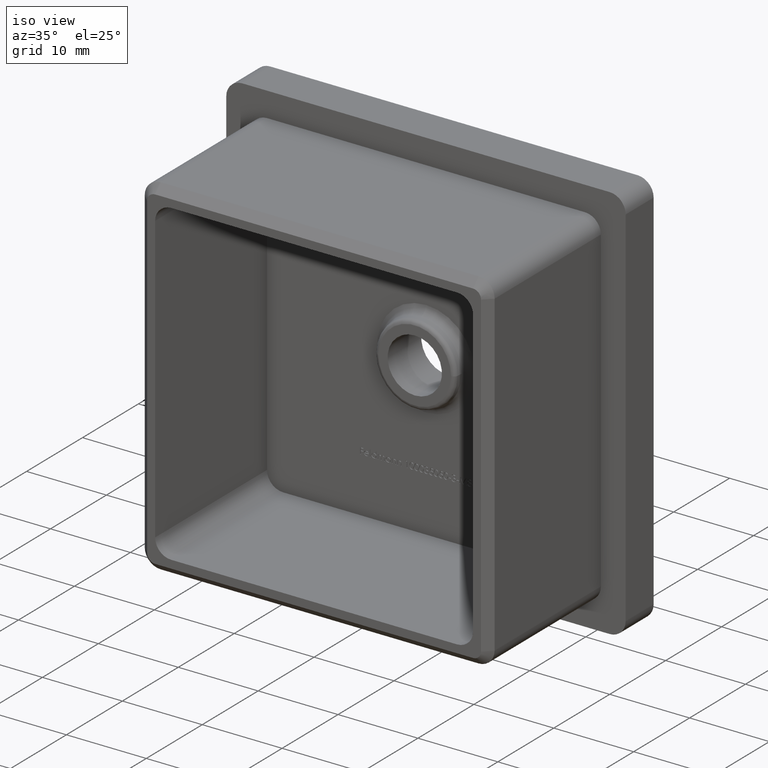
[diagram: clean part render]
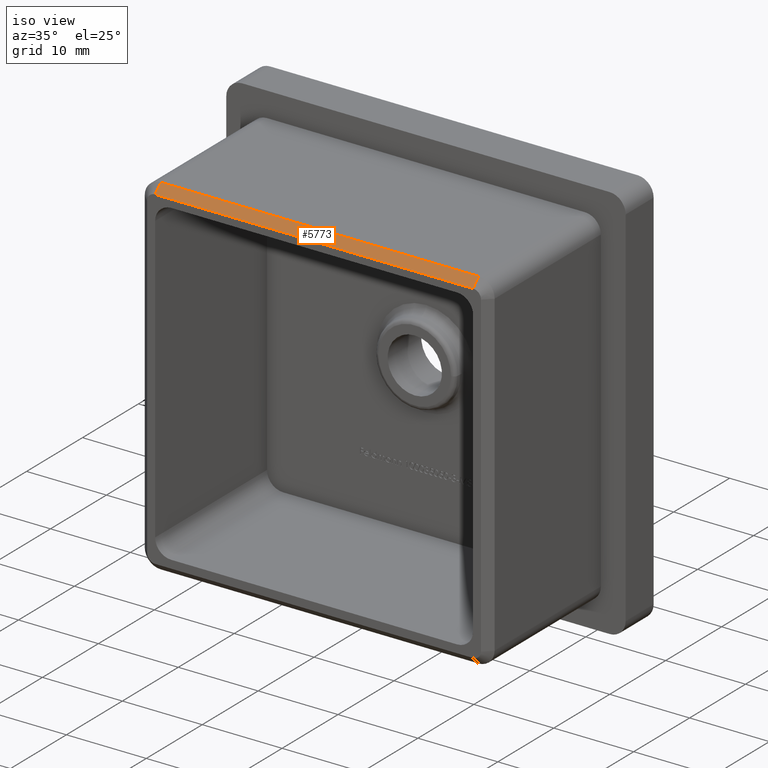
[diagram: same view with one face highlighted and labeled with its STEP entity id]
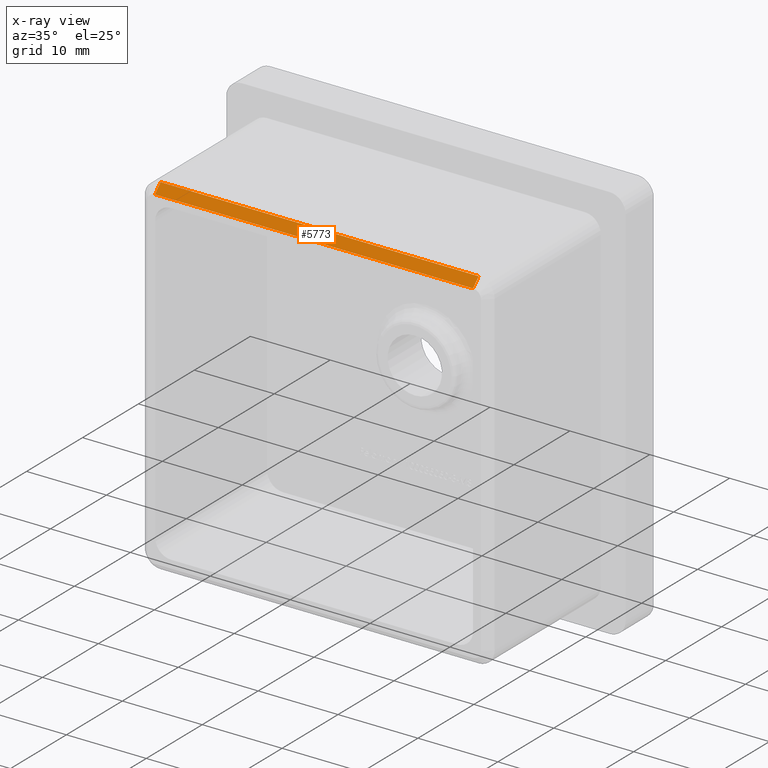
[diagram: x-ray of the same camera — body ghosted, the highlighted face saturated]
A machine part, iso view. The second image highlights one B-rep face of the part: STEP entity #5773.
The next image is the same camera in x-ray: the body ghosted, the highlighted face saturated — about 0% of this face is hidden behind the body in this view.
In plain terms, the highlighted planar face has unit normal (0, -0.7071, 0.7071).
Its self-contained STEP definition (entity closure, byte-faithful):
#49 = DIRECTION ( 'NONE',  ( 1.000000000000000000, 0.0000000000000000000, 0.0000000000000000000 ) ) ;
#875 = FACE_OUTER_BOUND ( 'NONE', #19964, .T. ) ;
#1661 = CARTESIAN_POINT ( 'NONE',  ( 0.0000000000000000000, -20.00000000000000000, 20.89999999999999500 ) ) ;
#2998 = CARTESIAN_POINT ( 'NONE',  ( 19.90000000000000200, -18.99999999999998600, 21.90000000000000200 ) ) ;
#3249 = CARTESIAN_POINT ( 'NONE',  ( 19.90000000000000200, -18.99999999999998600, 21.90000000000000200 ) ) ;
#3263 = DIRECTION ( 'NONE',  ( -1.000000000000000000, 0.0000000000000000000, 0.0000000000000000000 ) ) ;
#3312 = DIRECTION ( 'NONE',  ( 0.0000000000000000000, -0.7071067811865500200, -0.7071067811865451300 ) ) ;
#3962 = VECTOR ( 'NONE', #3312, 1000.000000000000100 ) ;
#4420 = VERTEX_POINT ( 'NONE', #6473 ) ;
#4798 = AXIS2_PLACEMENT_3D ( 'NONE', #1661, #16216, #49 ) ;
#4866 = VECTOR ( 'NONE', #12034, 1000.000000000000100 ) ;
#5773 = ADVANCED_FACE ( 'NONE', ( #875 ), #14540, .T. ) ;
#5870 = ORIENTED_EDGE ( 'NONE', *, *, #8548, .F. ) ;
#6424 = LINE ( 'NONE', #12845, #16161 ) ;
#6473 = CARTESIAN_POINT ( 'NONE',  ( 19.90000000000000200, -18.99999999999998600, 21.90000000000000200 ) ) ;
#7089 = CARTESIAN_POINT ( 'NONE',  ( -19.90000000000000200, -18.99999999999998600, 21.90000000000000200 ) ) ;
#7908 = CARTESIAN_POINT ( 'NONE',  ( 19.90000000000000200, -20.00000000000000000, 20.89999999999999500 ) ) ;
#8233 = LINE ( 'NONE', #3249, #3962 ) ;
#8548 = EDGE_CURVE ( 'NONE', #4420, #15011, #8233, .T. ) ;
#8878 = LINE ( 'NONE', #2998, #12868 ) ;
#12034 = DIRECTION ( 'NONE',  ( 0.0000000000000000000, -0.7071067811865500200, -0.7071067811865451300 ) ) ;
#12845 = CARTESIAN_POINT ( 'NONE',  ( -19.90000000000000200, -20.00000000000000000, 20.89999999999999500 ) ) ;
#12868 = VECTOR ( 'NONE', #17399, 1000.000000000000000 ) ;
#13484 = EDGE_CURVE ( 'NONE', #18135, #20320, #18650, .T. ) ;
#14265 = ORIENTED_EDGE ( 'NONE', *, *, #13484, .T. ) ;
#14540 = PLANE ( 'NONE',  #4798 ) ;
#15011 = VERTEX_POINT ( 'NONE', #7908 ) ;
#16161 = VECTOR ( 'NONE', #3263, 1000.000000000000000 ) ;
#16163 = CARTESIAN_POINT ( 'NONE',  ( -19.90000000000000200, -20.00000000000000000, 20.89999999999999500 ) ) ;
#16216 = DIRECTION ( 'NONE',  ( 0.0000000000000000000, -0.7071067811865451300, 0.7071067811865500200 ) ) ;
#16996 = CARTESIAN_POINT ( 'NONE',  ( -19.90000000000000200, -18.99999999999998600, 21.90000000000000200 ) ) ;
#17040 = EDGE_CURVE ( 'NONE', #15011, #20320, #6424, .T. ) ;
#17343 = ORIENTED_EDGE ( 'NONE', *, *, #19118, .F. ) ;
#17399 = DIRECTION ( 'NONE',  ( 1.000000000000000000, 0.0000000000000000000, 0.0000000000000000000 ) ) ;
#18135 = VERTEX_POINT ( 'NONE', #16996 ) ;
#18650 = LINE ( 'NONE', #7089, #4866 ) ;
#19118 = EDGE_CURVE ( 'NONE', #18135, #4420, #8878, .T. ) ;
#19964 = EDGE_LOOP ( 'NONE', ( #14265, #20742, #5870, #17343 ) ) ;
#20320 = VERTEX_POINT ( 'NONE', #16163 ) ;
#20742 = ORIENTED_EDGE ( 'NONE', *, *, #17040, .F. ) ;